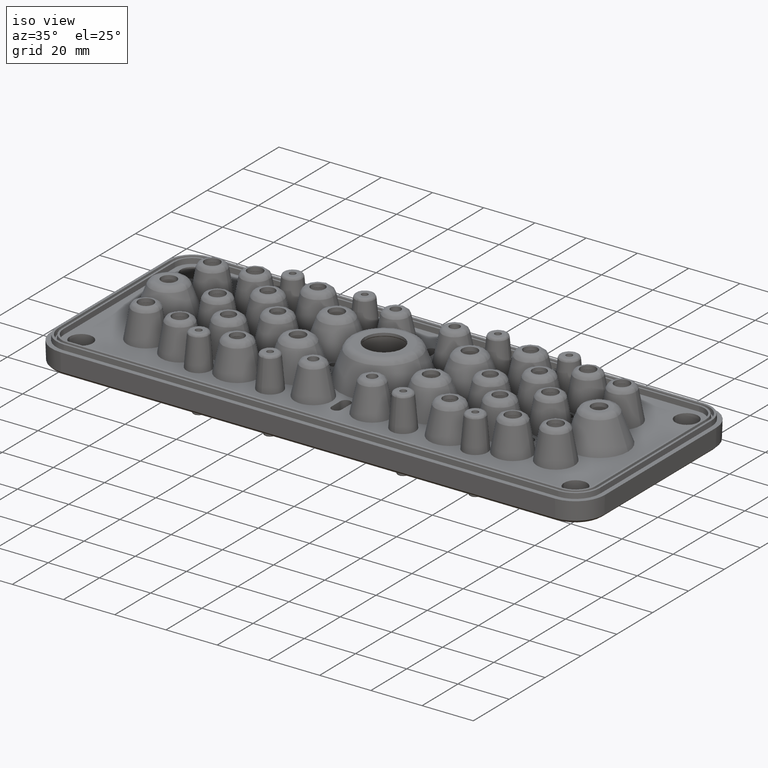
[diagram: clean part render]
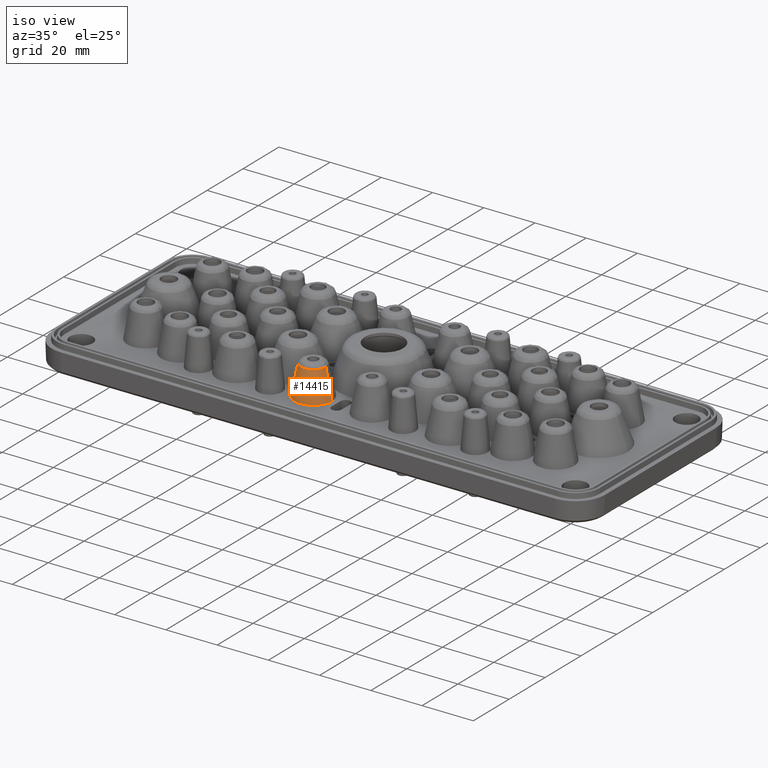
[diagram: same view with one face highlighted and labeled with its STEP entity id]
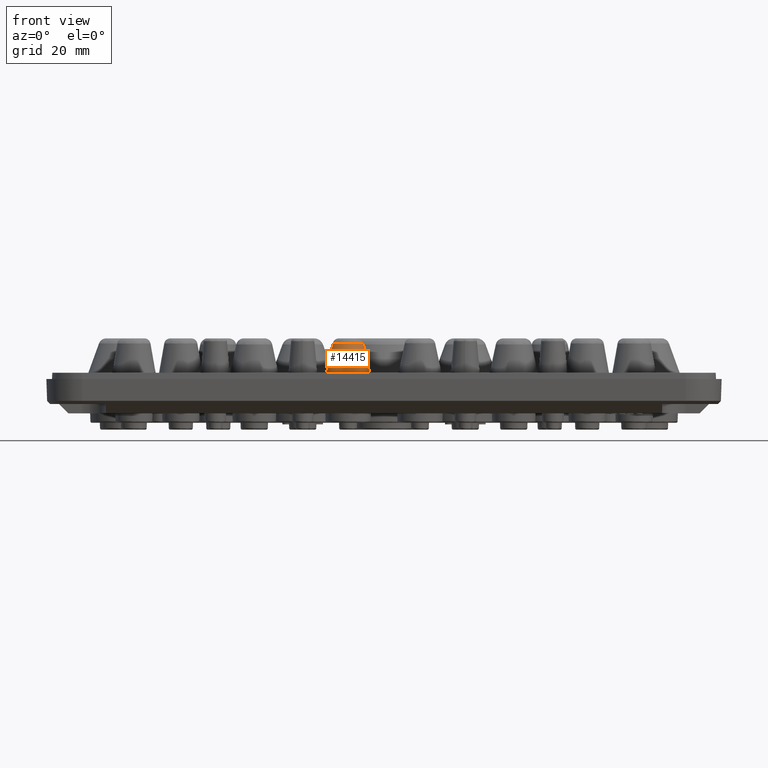
[diagram: same view with one face highlighted and labeled with its STEP entity id]
A machine part, iso view. The second image highlights one B-rep face of the part: STEP entity #14415.
A second angle (front view) of the same face is appended — the face is thin or edge-on in the first view.
In plain terms, the highlighted face is a freeform B-spline surface patch.
Its self-contained STEP definition (entity closure, byte-faithful):
#2035 = CARTESIAN_POINT ( 'NONE',  ( -73.94002494295389700, -92.15728731969488800, 11.41582338163551900 ) ) ;
#3581 = CARTESIAN_POINT ( 'NONE',  ( -73.94002494295391200, -82.41030365296028000, 11.41582338163552300 ) ) ;
#4778 = CARTESIAN_POINT ( 'NONE',  ( -71.51351677632122500, -82.41030365296028000, 0.0000000000000000000 ) ) ;
#4909 = CARTESIAN_POINT ( 'NONE',  ( -83.68700860968853300, -82.41030365296028000, 11.41582338163552300 ) ) ;
#6020 = EDGE_CURVE ( 'NONE', #55917, #59677, #40717, .T. ) ;
#6478 = CARTESIAN_POINT ( 'NONE',  ( -86.11351677632121900, -97.01030365296034600, -5.405877708494653600E-015 ) ) ;
#8960 = CARTESIAN_POINT ( 'NONE',  ( -78.81351677632122200, -82.41030365296028000, 11.41582338163552300 ) ) ;
#10624 = EDGE_CURVE ( 'NONE', #47965, #32963, #22905, .T. ) ;
#14415 = ADVANCED_FACE ( 'NONE', ( #43534 ), #37908, .T. ) ;
#19397 = AXIS2_PLACEMENT_3D ( 'NONE', #48643, #29593, #48062 ) ;
#19996 = CARTESIAN_POINT ( 'NONE',  ( -71.51351677632122500, -82.41030365296028000, 0.0000000000000000000 ) ) ;
#20597 = CARTESIAN_POINT ( 'NONE',  ( -86.11351677632121900, -82.41030365296028000, -5.405877708494653600E-015 ) ) ;
#21165 = AXIS2_PLACEMENT_3D ( 'NONE', #8960, #36859, #59419 ) ;
#22722 = ORIENTED_EDGE ( 'NONE', *, *, #60090, .F. ) ;
#22905 = LINE ( 'NONE', #56243, #51911 ) ;
#23058 = ORIENTED_EDGE ( 'NONE', *, *, #6020, .T. ) ;
#23236 = EDGE_LOOP ( 'NONE', ( #38881, #23058, #22722, #51367 ) ) ;
#25083 = CARTESIAN_POINT ( 'NONE',  ( -71.51351677632122500, -82.41030365296028000, -5.405877708494653600E-015 ) ) ;
#29593 = DIRECTION ( 'NONE',  ( 0.0000000000000000000, 0.0000000000000000000, 1.000000000000000000 ) ) ;
#32369 = CARTESIAN_POINT ( 'NONE',  ( -86.11351677632121900, -82.41030365296028000, 0.0000000000000000000 ) ) ;
#32963 = VERTEX_POINT ( 'NONE', #4909 ) ;
#33094 = DIRECTION ( 'NONE',  ( 0.2079116908177593700, 0.0000000000000000000, 0.9781476007338055800 ) ) ;
#33148 = CIRCLE ( 'NONE', #21165, 4.873491833367313400 ) ;
#34577 = CARTESIAN_POINT ( 'NONE',  ( -83.68700860968849000, -92.15728731969495900, 11.41582338163551900 ) ) ;
#36859 = DIRECTION ( 'NONE',  ( 0.0000000000000000000, 0.0000000000000000000, 1.000000000000000000 ) ) ;
#37234 = CIRCLE ( 'NONE', #19397, 7.300000000000000700 ) ;
#37908 =( BOUNDED_SURFACE ( )  B_SPLINE_SURFACE ( 1, 3, ( 
 ( #25083, #43335, #6478, #20597 ),
 ( #57529, #2035, #34577, #49354 ) ),
 .UNSPECIFIED., .F., .F., .F. ) 
 B_SPLINE_SURFACE_WITH_KNOTS ( ( 2, 2 ),
 ( 4, 4 ),
 ( 0.0000000000000000000, 1.000000000000000000 ),
 ( 0.0000000000000000000, 1.000000000000000000 ),
 .UNSPECIFIED. ) 
 GEOMETRIC_REPRESENTATION_ITEM ( )  RATIONAL_B_SPLINE_SURFACE ( (
 ( 1.000000000000000000, 0.3333333333333324800, 0.3333333333333324800, 1.000000000000000000),
 ( 1.000000000000000000, 0.3333333333333324800, 0.3333333333333324800, 1.000000000000000000) ) ) 
 REPRESENTATION_ITEM ( '' )  SURFACE ( )  );
#38881 = ORIENTED_EDGE ( 'NONE', *, *, #50251, .T. ) ;
#40717 = LINE ( 'NONE', #19996, #43649 ) ;
#43335 = CARTESIAN_POINT ( 'NONE',  ( -71.51351677632119700, -97.01030365296030300, -5.405877708494653600E-015 ) ) ;
#43534 = FACE_OUTER_BOUND ( 'NONE', #23236, .T. ) ;
#43649 = VECTOR ( 'NONE', #52213, 1000.000000000000100 ) ;
#47965 = VERTEX_POINT ( 'NONE', #32369 ) ;
#48062 = DIRECTION ( 'NONE',  ( -1.000000000000000000, 0.0000000000000000000, 0.0000000000000000000 ) ) ;
#48643 = CARTESIAN_POINT ( 'NONE',  ( -78.81351677632122200, -82.41030365296028000, 0.0000000000000000000 ) ) ;
#49354 = CARTESIAN_POINT ( 'NONE',  ( -83.68700860968853300, -82.41030365296029500, 11.41582338163552100 ) ) ;
#50251 = EDGE_CURVE ( 'NONE', #47965, #55917, #37234, .T. ) ;
#51367 = ORIENTED_EDGE ( 'NONE', *, *, #10624, .F. ) ;
#51911 = VECTOR ( 'NONE', #33094, 1000.000000000000100 ) ;
#52213 = DIRECTION ( 'NONE',  ( -0.2079116908177593700, -2.546183866652831700E-017, 0.9781476007338055800 ) ) ;
#55917 = VERTEX_POINT ( 'NONE', #4778 ) ;
#56243 = CARTESIAN_POINT ( 'NONE',  ( -86.11351677632121900, -82.41030365296028000, 0.0000000000000000000 ) ) ;
#57529 = CARTESIAN_POINT ( 'NONE',  ( -73.94002494295391200, -82.41030365296028000, 11.41582338163552100 ) ) ;
#59419 = DIRECTION ( 'NONE',  ( 1.000000000000000000, 0.0000000000000000000, 0.0000000000000000000 ) ) ;
#59677 = VERTEX_POINT ( 'NONE', #3581 ) ;
#60090 = EDGE_CURVE ( 'NONE', #32963, #59677, #33148, .T. ) ;